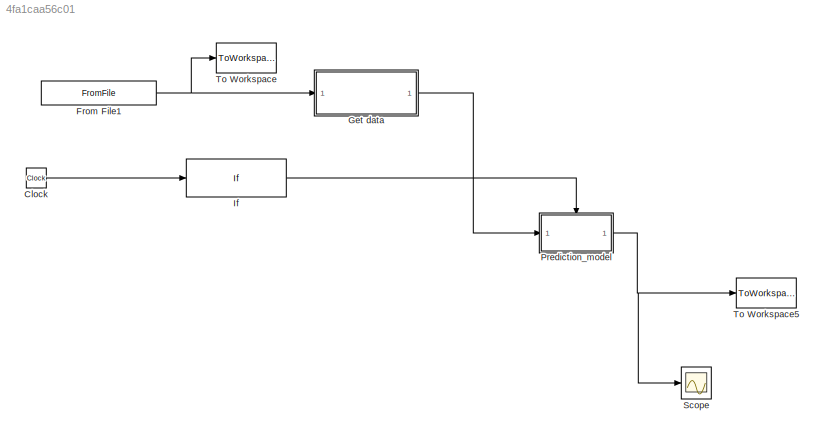
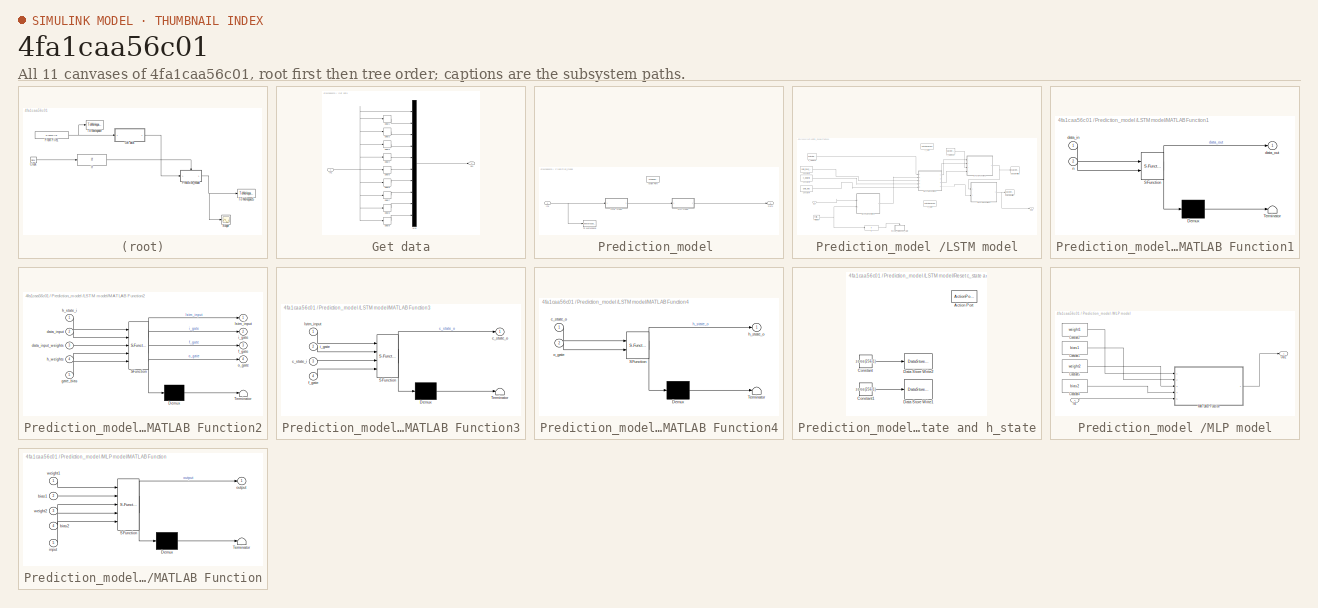
[diagram: thumbnail index - all 11 canvases of the model, root first then tree order]
MODEL slx_4fa1caa56c01
KIND model
CONFIG AbsTol = auto
CONFIG EnableMultiTasking = off
CONFIG FixedStep = 1
CONFIG MaxStep = auto
CONFIG MinStep = auto
CONFIG PostLoadFcn = load 'model_specs/LSTM/n_LSTM_units.mat'\nload 'model_specs/LSTM/T.mat'\nload 'model_specs/LSTM/data_input_weights.mat'\nload 'model_specs/LSTM/h_weights.mat'\nload 'model_specs/LSTM/gate_bias.mat'\nload 'model_specs/MLP/weight1.mat'\nload 'model_specs/MLP/bias1.mat'\nload 'model_specs/MLP/weight2.mat'\nload 'model_specs/MLP/bias2.mat'
CONFIG PreLoadFcn = load '../simulink/model_specs/LSTM/n_LSTM_units.mat'\nload '../simulink/model_specs/LSTM/T.mat'\nload '../simulink/model_specs/LSTM/data_input_weights.mat'\nload '../simulink/model_specs/LSTM/h_weights.mat'\nload '../simulink/model_specs/LSTM/gate_bias.mat'\nload '../simulink/model_specs/MLP/weight1.mat'\nload '../simulink/model_specs/MLP/bias1.mat'\nload '../simulink/model_specs/MLP/weight2.mat'\nload '....<+37ch>
CONFIG RelTol = 1e-3
CONFIG SampleTimeConstraint = Unconstrained
CONFIG Solver = FixedStepAuto
CONFIG SolverName = FixedStepAuto
CONFIG StartTime = 0.0
CONFIG StopTime = 789
BLOCK [Clock] Clock
BLOCK [FromFile] From File1
  ExtrapolationBeforeFirstDataPoint = Hold first value
  FileName = data/HFR_data_4_sim.mat
  OutDataTypeStr = double
  SampleTime = 1
BLOCK [SubSystem] Get data
  Ports = [1, 1]
  RequestExecContextInheritance = off
  Tag = Get_Data
BLOCK [Delay] Get data/Delay1
  DelayLength = 1
  InitialCondition = 0
  InputPortMap = u0
  Ports = [1, 1]
BLOCK [Delay] Get data/Delay2
  InitialCondition = 0
  InputPortMap = u0
  Ports = [1, 1]
BLOCK [Delay] Get data/Delay3
  DelayLength = 3
  InitialCondition = 0
  InputPortMap = u0
  Ports = [1, 1]
BLOCK [Delay] Get data/Delay4
  DelayLength = 4
  InitialCondition = 0
  InputPortMap = u0
  Ports = [1, 1]
BLOCK [Delay] Get data/Delay5
  DelayLength = 5
  InitialCondition = 0
  InputPortMap = u0
  Ports = [1, 1]
BLOCK [Delay] Get data/Delay6
  DelayLength = 6
  InitialCondition = 0
  InputPortMap = u0
  Ports = [1, 1]
BLOCK [Delay] Get data/Delay7
  DelayLength = 7
  InitialCondition = 0
  InputPortMap = u0
  Ports = [1, 1]
BLOCK [Delay] Get data/Delay8
  DelayLength = 8
  InitialCondition = 0
  InputPortMap = u0
  Ports = [1, 1]
BLOCK [Delay] Get data/Delay9
  DelayLength = 9
  InitialCondition = 0
  InputPortMap = u0
  Ports = [1, 1]
BLOCK [Inport] Get data/In1
  IconDisplay = Port number
BLOCK [Mux] Get data/Mux
  DisplayOption = bar
  Inputs = 10
  Ports = [10, 1]
BLOCK [Outport] Get data/Ou1
  IconDisplay = Port number
BLOCK [If] If
  IfExpression = u1 >=10
  Ports = [1, 1]
  ShowElse = off
BLOCK [SubSystem] Prediction_model 
  Ports = [1, 1, 0, 0, 0, 0, 0, 1]
  RequestExecContextInheritance = off
  TreatAsAtomicUnit = on
BLOCK [ActionPort] Prediction_model /Action Port
  ActionType = then
BLOCK [Inport] Prediction_model /In1
  IconDisplay = Port number
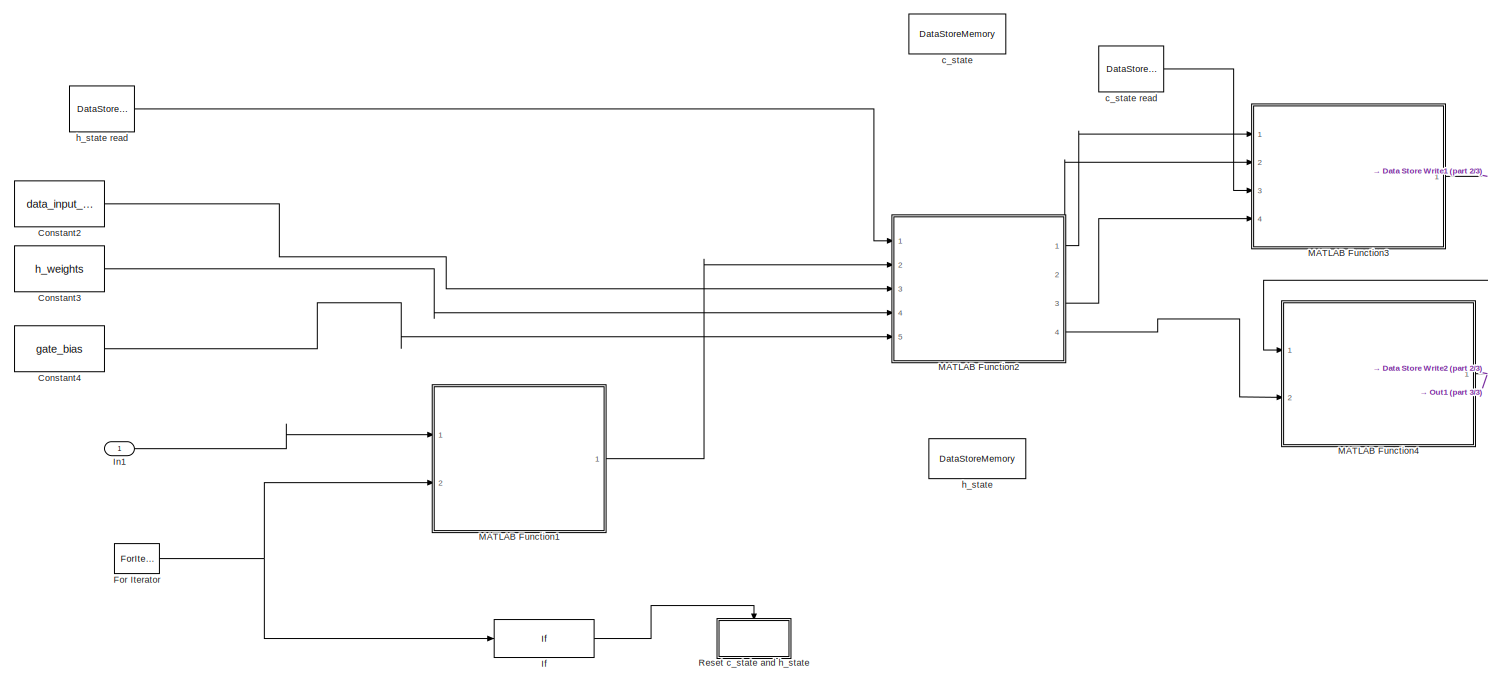
[diagram: Prediction_model /LSTM model - part 1/3, most of the canvas]
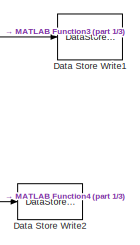
[diagram: Prediction_model /LSTM model - part 2/3, middle right region]
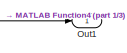
[diagram: Prediction_model /LSTM model - part 3/3, bottom right region]
BLOCK [SubSystem] Prediction_model /LSTM model
  Ports = [1, 1]
  RequestExecContextInheritance = off
  TreatAsAtomicUnit = on
BLOCK [Constant] Prediction_model /LSTM model/Constant2
  Value = data_input_weights
BLOCK [Constant] Prediction_model /LSTM model/Constant3
  Value = h_weights
BLOCK [Constant] Prediction_model /LSTM model/Constant4
  Value = gate_bias
BLOCK [DataStoreWrite] Prediction_model /LSTM model/Data Store Write1
  DataStoreName = c_state
  Ports = [1]
BLOCK [DataStoreWrite] Prediction_model /LSTM model/Data Store Write2
  DataStoreName = h_state
  Ports = [1]
BLOCK [ForIterator] Prediction_model /LSTM model/For Iterator
  IterationLimit = 10
  Ports = [0, 1]
BLOCK [If] Prediction_model /LSTM model/If
  IfExpression = u1 ==10
  Ports = [1, 1]
  ShowElse = off
BLOCK [Inport] Prediction_model /LSTM model/In1
  IconDisplay = Port number
BLOCK [SubSystem] Prediction_model /LSTM model/MATLAB Function1
  ErrorFcn = Stateflow.Translate.translate
  PermitHierarchicalResolution = ExplicitOnly
  Ports = [2, 1]
  RequestExecContextInheritance = off
  SFBlockType = MATLAB Function
  TreatAsAtomicUnit = on
BLOCK [Demux] Prediction_model /LSTM model/MATLAB Function1/ Demux 
  Outputs = 1
  Ports = [1, 1]
BLOCK [S-Function] Prediction_model /LSTM model/MATLAB Function1/ SFunction 
  EnableBusSupport = on
  FunctionName = sf_sfun
  PortCounts = [2 2]
  Ports = [2, 2]
  SFcnIsStateOwnerBlock = off
  SFunctionDeploymentMode = off
  Tag = Stateflow S-Function test_model_ver1 7
BLOCK [Terminator] Prediction_model /LSTM model/MATLAB Function1/ Terminator 
BLOCK [Inport] Prediction_model /LSTM model/MATLAB Function1/data_in
  IconDisplay = Port number
BLOCK [Outport] Prediction_model /LSTM model/MATLAB Function1/data_out
  IconDisplay = Port number
BLOCK [Inport] Prediction_model /LSTM model/MATLAB Function1/n
  IconDisplay = Port number
  Port = 2
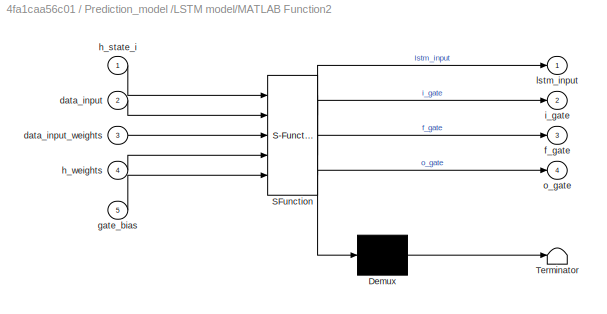
BLOCK [SubSystem] Prediction_model /LSTM model/MATLAB Function2
  ErrorFcn = Stateflow.Translate.translate
  PermitHierarchicalResolution = ExplicitOnly
  Ports = [5, 4]
  RequestExecContextInheritance = off
  SFBlockType = MATLAB Function
  TreatAsAtomicUnit = on
BLOCK [Demux] Prediction_model /LSTM model/MATLAB Function2/ Demux 
  Outputs = 1
  Ports = [1, 1]
BLOCK [S-Function] Prediction_model /LSTM model/MATLAB Function2/ SFunction 
  EnableBusSupport = on
  FunctionName = sf_sfun
  PortCounts = [5 5]
  Ports = [5, 5]
  SFcnIsStateOwnerBlock = off
  SFunctionDeploymentMode = off
  Tag = Stateflow S-Function test_model_ver1 2
BLOCK [Terminator] Prediction_model /LSTM model/MATLAB Function2/ Terminator 
BLOCK [Inport] Prediction_model /LSTM model/MATLAB Function2/data_input
  IconDisplay = Port number
  Port = 2
BLOCK [Inport] Prediction_model /LSTM model/MATLAB Function2/data_input_weights
  IconDisplay = Port number
  Port = 3
BLOCK [Outport] Prediction_model /LSTM model/MATLAB Function2/f_gate
  IconDisplay = Port number
  Port = 3
BLOCK [Inport] Prediction_model /LSTM model/MATLAB Function2/gate_bias
  IconDisplay = Port number
  Port = 5
BLOCK [Inport] Prediction_model /LSTM model/MATLAB Function2/h_state_i
  IconDisplay = Port number
BLOCK [Inport] Prediction_model /LSTM model/MATLAB Function2/h_weights
  IconDisplay = Port number
  Port = 4
BLOCK [Outport] Prediction_model /LSTM model/MATLAB Function2/i_gate
  IconDisplay = Port number
  Port = 2
BLOCK [Outport] Prediction_model /LSTM model/MATLAB Function2/lstm_input
  IconDisplay = Port number
BLOCK [Outport] Prediction_model /LSTM model/MATLAB Function2/o_gate
  IconDisplay = Port number
  Port = 4
BLOCK [SubSystem] Prediction_model /LSTM model/MATLAB Function3
  ErrorFcn = Stateflow.Translate.translate
  PermitHierarchicalResolution = ExplicitOnly
  Ports = [4, 1]
  RequestExecContextInheritance = off
  SFBlockType = MATLAB Function
  TreatAsAtomicUnit = on
BLOCK [Demux] Prediction_model /LSTM model/MATLAB Function3/ Demux 
  Outputs = 1
  Ports = [1, 1]
BLOCK [S-Function] Prediction_model /LSTM model/MATLAB Function3/ SFunction 
  EnableBusSupport = on
  FunctionName = sf_sfun
  PortCounts = [4 2]
  Ports = [4, 2]
  SFcnIsStateOwnerBlock = off
  SFunctionDeploymentMode = off
  Tag = Stateflow S-Function test_model_ver1 6
BLOCK [Terminator] Prediction_model /LSTM model/MATLAB Function3/ Terminator 
BLOCK [Inport] Prediction_model /LSTM model/MATLAB Function3/c_state_i
  IconDisplay = Port number
  Port = 3
BLOCK [Outport] Prediction_model /LSTM model/MATLAB Function3/c_state_o
  IconDisplay = Port number
BLOCK [Inport] Prediction_model /LSTM model/MATLAB Function3/f_gate
  IconDisplay = Port number
  Port = 4
BLOCK [Inport] Prediction_model /LSTM model/MATLAB Function3/i_gate
  IconDisplay = Port number
  Port = 2
BLOCK [Inport] Prediction_model /LSTM model/MATLAB Function3/lstm_input
  IconDisplay = Port number
BLOCK [SubSystem] Prediction_model /LSTM model/MATLAB Function4
  ErrorFcn = Stateflow.Translate.translate
  PermitHierarchicalResolution = ExplicitOnly
  Ports = [2, 1]
  RequestExecContextInheritance = off
  SFBlockType = MATLAB Function
  TreatAsAtomicUnit = on
BLOCK [Demux] Prediction_model /LSTM model/MATLAB Function4/ Demux 
  Outputs = 1
  Ports = [1, 1]
BLOCK [S-Function] Prediction_model /LSTM model/MATLAB Function4/ SFunction 
  EnableBusSupport = on
  FunctionName = sf_sfun
  PortCounts = [2 2]
  Ports = [2, 2]
  SFcnIsStateOwnerBlock = off
  SFunctionDeploymentMode = off
  Tag = Stateflow S-Function test_model_ver1 8
BLOCK [Terminator] Prediction_model /LSTM model/MATLAB Function4/ Terminator 
BLOCK [Inport] Prediction_model /LSTM model/MATLAB Function4/c_state_o
  IconDisplay = Port number
BLOCK [Outport] Prediction_model /LSTM model/MATLAB Function4/h_state_o
  IconDisplay = Port number
BLOCK [Inport] Prediction_model /LSTM model/MATLAB Function4/o_gate
  IconDisplay = Port number
  Port = 2
BLOCK [Outport] Prediction_model /LSTM model/Out1
  IconDisplay = Port number
BLOCK [SubSystem] Prediction_model /LSTM model/Reset c_state and h_state
  Ports = [0, 0, 0, 0, 0, 0, 0, 1]
  RequestExecContextInheritance = off
  TreatAsAtomicUnit = on
BLOCK [ActionPort] Prediction_model /LSTM model/Reset c_state and h_state/Action Port
  ActionType = then
BLOCK [Constant] Prediction_model /LSTM model/Reset c_state and h_state/Constant
  OutDataTypeStr = single
  Value = zeros(256,1)
BLOCK [Constant] Prediction_model /LSTM model/Reset c_state and h_state/Constant1
  OutDataTypeStr = single
  Value = zeros(256,1)
BLOCK [DataStoreWrite] Prediction_model /LSTM model/Reset c_state and h_state/Data Store Write1
  DataStoreName = c_state
  Ports = [1]
BLOCK [DataStoreWrite] Prediction_model /LSTM model/Reset c_state and h_state/Data Store Write2
  DataStoreName = h_state
  Ports = [1]
BLOCK [DataStoreMemory] Prediction_model /LSTM model/c_state
  DataStoreName = c_state
  Dimensions = [n_LSTM_units,1]
  InitialValue = zeros(256,1)
  OutDataTypeStr = single
  ReadBeforeWriteMsg = warning
  ShowAdditionalParam = off
  WriteAfterReadMsg = warning
  WriteAfterWriteMsg = warning
BLOCK [DataStoreRead] Prediction_model /LSTM model/c_state read
  DataStoreName = c_state
  Ports = [0, 1]
BLOCK [DataStoreMemory] Prediction_model /LSTM model/h_state
  DataStoreName = h_state
  Dimensions = [n_LSTM_units,1]
  InitialValue = zeros(256,1)
  OutDataTypeStr = single
  ReadBeforeWriteMsg = warning
  ShowAdditionalParam = off
  SignalType = real
  WriteAfterReadMsg = warning
  WriteAfterWriteMsg = warning
BLOCK [DataStoreRead] Prediction_model /LSTM model/h_state read
  DataStoreName = h_state
  Ports = [0, 1]
BLOCK [SubSystem] Prediction_model /MLP model
  Ports = [1, 1]
  RequestExecContextInheritance = off
BLOCK [Constant] Prediction_model /MLP model/Constant1
  Value = bias1
BLOCK [Constant] Prediction_model /MLP model/Constant2
  Value = weight1
BLOCK [Constant] Prediction_model /MLP model/Constant4
  Value = bias2
BLOCK [Constant] Prediction_model /MLP model/Constant5
  Value = weight2
BLOCK [Inport] Prediction_model /MLP model/In2
  IconDisplay = Port number
BLOCK [SubSystem] Prediction_model /MLP model/MATLAB Function
  ErrorFcn = Stateflow.Translate.translate
  PermitHierarchicalResolution = ExplicitOnly
  Ports = [5, 1]
  RequestExecContextInheritance = off
  SFBlockType = MATLAB Function
  TreatAsAtomicUnit = on
BLOCK [Demux] Prediction_model /MLP model/MATLAB Function/ Demux 
  Outputs = 1
  Ports = [1, 1]
BLOCK [S-Function] Prediction_model /MLP model/MATLAB Function/ SFunction 
  EnableBusSupport = on
  FunctionName = sf_sfun
  PortCounts = [5 2]
  Ports = [5, 2]
  SFcnIsStateOwnerBlock = off
  SFunctionDeploymentMode = off
  Tag = Stateflow S-Function test_model_ver1 9
BLOCK [Terminator] Prediction_model /MLP model/MATLAB Function/ Terminator 
BLOCK [Inport] Prediction_model /MLP model/MATLAB Function/bias1
  IconDisplay = Port number
  Port = 2
BLOCK [Inport] Prediction_model /MLP model/MATLAB Function/bias2
  IconDisplay = Port number
  Port = 4
BLOCK [Inport] Prediction_model /MLP model/MATLAB Function/input
  IconDisplay = Port number
  Port = 5
BLOCK [Outport] Prediction_model /MLP model/MATLAB Function/output
  IconDisplay = Port number
BLOCK [Inport] Prediction_model /MLP model/MATLAB Function/weight1
  IconDisplay = Port number
BLOCK [Inport] Prediction_model /MLP model/MATLAB Function/weight2
  IconDisplay = Port number
  Port = 3
BLOCK [Outport] Prediction_model /MLP model/Out2
  IconDisplay = Port number
  OutDataTypeStr = single
  VarSizeSig = No
BLOCK [Outport] Prediction_model /Out1
  IconDisplay = Port number
BLOCK [ToWorkspace] Prediction_model /To Workspace
  FixptAsFi = on
  MaxDataPoints = inf
  Ports = [1]
  SampleTime = -1
  Save2DSignal = 3-D array (concatenate along third dimension)
  SaveFormat = Timeseries
  VariableName = simout1
BLOCK [Scope] Scope
  Floating = off
  NumInputPorts = 1
  Ports = [1]
  ScopeSpecificationString = Simulink.scopes.TimeScopeBlockCfg('CurrentConfiguration', extmgr.ConfigurationSet(extmgr.Configuration('Core','General UI',true),extmgr.Configuration('Core','Source UI',true),extmgr.Configuration('Sources','WiredSimulink',true),extmgr.Configuration('Visuals','Time Domain',true,'SerializedDisplays',{struct('MinYLimReal','-35.93399','MaxYLimReal','4.9349','YLabelReal','','MinYLimMag','0.00000','MaxY...<+1396ch>
BLOCK [ToWorkspace] To Workspace
  FixptAsFi = on
  MaxDataPoints = inf
  Ports = [1]
  SampleTime = -1
  Save2DSignal = 3-D array (concatenate along third dimension)
  SaveFormat = Timeseries
  VariableName = simout
BLOCK [ToWorkspace] To Workspace5
  FixptAsFi = on
  MaxDataPoints = inf
  Ports = [1]
  SampleTime = -1
  Save2DSignal = 3-D array (concatenate along third dimension)
  SaveFormat = Timeseries
  VariableName = simout4
LINE Clock:1 -> If:1
NET From File1:1 -> Get data:1, To Workspace:1
LINE Get data/Delay1:1 -> Get data/Mux:2
LINE Get data/Delay2:1 -> Get data/Mux:3
LINE Get data/Delay3:1 -> Get data/Mux:4
LINE Get data/Delay4:1 -> Get data/Mux:5
LINE Get data/Delay5:1 -> Get data/Mux:6
LINE Get data/Delay6:1 -> Get data/Mux:7
LINE Get data/Delay7:1 -> Get data/Mux:8
LINE Get data/Delay8:1 -> Get data/Mux:9
LINE Get data/Delay9:1 -> Get data/Mux:10
NET Get data/In1:1 -> Get data/Delay1:1, Get data/Delay2:1, Get data/Delay3:1, Get data/Delay4:1, Get data/Delay5:1, Get data/Delay6:1, Get data/Delay7:1, Get data/Delay8:1, Get data/Delay9:1, Get data/Mux:1
LINE Get data/Mux:1 -> Get data/Ou1:1
LINE Get data:1 -> Prediction_model :1
LINE If:1 -> Prediction_model :ifaction
NET Prediction_model /In1:1 -> Prediction_model /LSTM model:1, Prediction_model /To Workspace:1
LINE Prediction_model /LSTM model/Constant2:1 -> Prediction_model /LSTM model/MATLAB Function2:3
LINE Prediction_model /LSTM model/Constant3:1 -> Prediction_model /LSTM model/MATLAB Function2:4
LINE Prediction_model /LSTM model/Constant4:1 -> Prediction_model /LSTM model/MATLAB Function2:5
NET Prediction_model /LSTM model/For Iterator:1 -> Prediction_model /LSTM model/If:1, Prediction_model /LSTM model/MATLAB Function1:2
LINE Prediction_model /LSTM model/If:1 -> Prediction_model /LSTM model/Reset c_state and h_state:ifaction
LINE Prediction_model /LSTM model/In1:1 -> Prediction_model /LSTM model/MATLAB Function1:1
LINE Prediction_model /LSTM model/MATLAB Function1:1 -> Prediction_model /LSTM model/MATLAB Function2:2
LINE Prediction_model /LSTM model/MATLAB Function2:1 -> Prediction_model /LSTM model/MATLAB Function3:1
LINE Prediction_model /LSTM model/MATLAB Function2:2 -> Prediction_model /LSTM model/MATLAB Function3:2
LINE Prediction_model /LSTM model/MATLAB Function2:3 -> Prediction_model /LSTM model/MATLAB Function3:4
LINE Prediction_model /LSTM model/MATLAB Function2:4 -> Prediction_model /LSTM model/MATLAB Function4:2
NET Prediction_model /LSTM model/MATLAB Function3:1 -> Prediction_model /LSTM model/Data Store Write1:1, Prediction_model /LSTM model/MATLAB Function4:1
NET Prediction_model /LSTM model/MATLAB Function4:1 -> Prediction_model /LSTM model/Data Store Write2:1, Prediction_model /LSTM model/Out1:1
LINE Prediction_model /LSTM model/Reset c_state and h_state/Constant1:1 -> Prediction_model /LSTM model/Reset c_state and h_state/Data Store Write1:1
LINE Prediction_model /LSTM model/Reset c_state and h_state/Constant:1 -> Prediction_model /LSTM model/Reset c_state and h_state/Data Store Write2:1
LINE Prediction_model /LSTM model/c_state read:1 -> Prediction_model /LSTM model/MATLAB Function3:3
LINE Prediction_model /LSTM model/h_state read:1 -> Prediction_model /LSTM model/MATLAB Function2:1
LINE Prediction_model /LSTM model:1 -> Prediction_model /MLP model:1
LINE Prediction_model /MLP model/Constant1:1 -> Prediction_model /MLP model/MATLAB Function:2
LINE Prediction_model /MLP model/Constant2:1 -> Prediction_model /MLP model/MATLAB Function:1
LINE Prediction_model /MLP model/Constant4:1 -> Prediction_model /MLP model/MATLAB Function:4
LINE Prediction_model /MLP model/Constant5:1 -> Prediction_model /MLP model/MATLAB Function:3
LINE Prediction_model /MLP model/In2:1 -> Prediction_model /MLP model/MATLAB Function:5
LINE Prediction_model /MLP model/MATLAB Function:1 -> Prediction_model /MLP model/Out2:1
LINE Prediction_model /MLP model:1 -> Prediction_model /Out1:1
NET Prediction_model :1 -> Scope:1, To Workspace5:1
note: NET lines group one-source signal fan-out (src -> all destinations, sorted); 1:1 wires keep LINE
CHART Prediction_model
/LSTM model/MATLAB Function2 states=1 transitions=1
  STATE_LABEL 'eML_blk_kernel()'
  STATE_LABEL 'SCRIPT:\nfunction [lstm_input,i_gate,f_gate,o_gate]=compute_gates(h_state_i,data_input,data_input_weights,h_weights,gate_bias)\n%%%% this function computes the gate mechanism of lstm \n%%%% data_input_weights: weights for data inputs (W_input + W_input_gate+W_forget_gate+W_output_gate) * sizeof data_input \n%%%% h_input_weights: weights for previous h (W_input + W_input_gate+W_forget_gate+W_output_gat...<+1211ch>'
CHART Prediction_model
/LSTM model/MATLAB Function3 states=1 transitions=1
  STATE_LABEL 'eML_blk_kernel()'
  STATE_LABEL 'SCRIPT:\nfunction c_state_o=compute_cell_state(lstm_input,i_gate,c_state_i,f_gate)\n%%%% compute lstm cell states\n\n\ncurrent_update=lstm_input.*i_gate;\nprevious_correction=c_state_i.*f_gate; %%% n_h *1 \nc_state_o=current_update+previous_correction;  %%% n_h*1\nend '
CHART Prediction_model
/LSTM model/MATLAB Function1 states=1 transitions=1
  STATE_LABEL 'eML_blk_kernel()'
  STATE_LABEL 'SCRIPT:\nfunction data_out =organize_data(data_in,n)\n%%%% THis function get feature_size*1 data input from (feature_size*look_back_step,1) data \n%%%% data_in: data for LSTM input (feature_size*look_back_step,1), last feature_size*1 data is the most recent sensor readingViswanathan \n%%%% n: iteration number, same as LSTM look back length  \n\nT=10; %%% Total look back length \nfeature=12; %%% feature s...<+167ch>'
CHART Prediction_model
/LSTM model/MATLAB Function4 states=1 transitions=1
  STATE_LABEL 'eML_blk_kernel()'
  STATE_LABEL 'SCRIPT:\nfunction h_state_o=compute_output(c_state_o,o_gate)\n%%% compute lstm output \nh_state_o=my_tanh(c_state_o).*o_gate; %%% n_h*1\nend \n\nfunction output=my_tanh(input) %%% not sure if this can be implemented \na=1-exp(-2*input); %%% use negative coeff to avoid overflow\nb=1+exp(-2*input);  \noutput=a./b;\nend'
CHART Prediction_model
/MLP model/MATLAB Function states=1 transitions=1
  STATE_LABEL 'eML_blk_kernel()'
  STATE_LABEL 'SCRIPT:\nfunction output= MLP_forward(weight1,bias1,weight2,bias2,input)\n%% input: feature_size*1\n\n%%%: need to combine two dense layers or add non-avtivation in between, will change in future\n\n% weight1=model_specs.weight1;\n% bias1=model_specs.bias1;\n% weight2=model_specs.weight2;\n% bias2=model_specs.bias2;\n \noutput_1=single(zeros(256,1)); \nrelu1=single(zeros(1,256));\noutput=single(zeros(1,1));  \n...<+396ch>'
